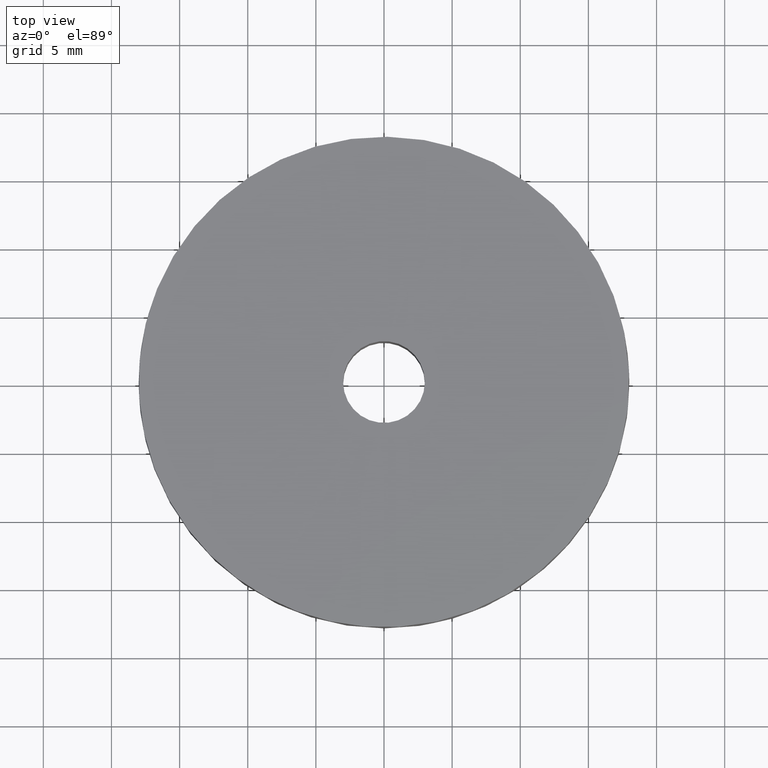
[diagram: clean part render]
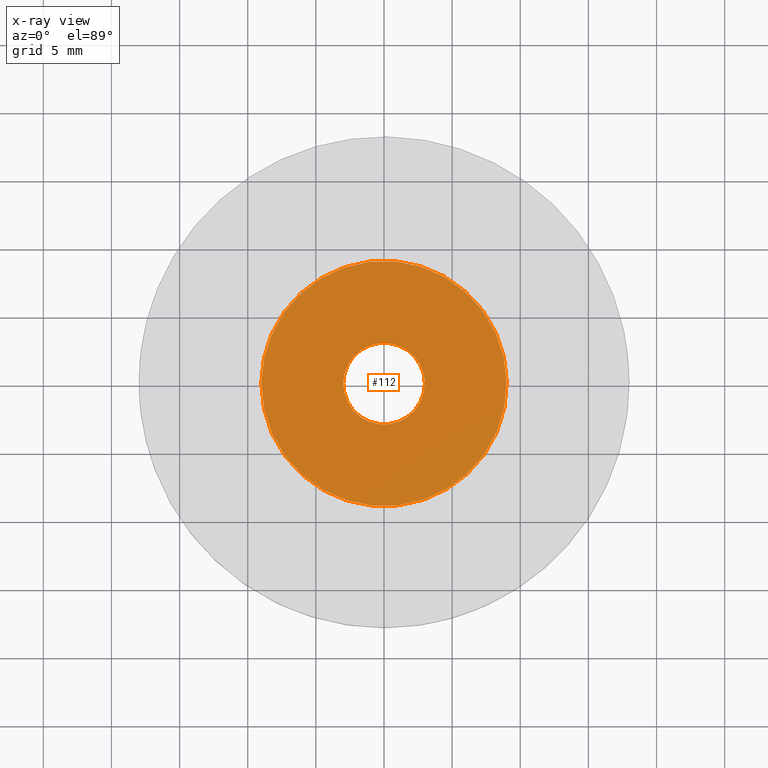
[diagram: x-ray — body ghosted, one internal face saturated and labeled with its STEP entity id]
A machine part, top view, then the same camera in x-ray: the body is ghosted and one INTERNAL B-rep face — a face not visible from any outside direction — is saturated and labeled: STEP entity #112.
In plain terms, the highlighted planar face has unit normal (0, 0, -1).
Its self-contained STEP definition (entity closure, byte-faithful):
#112=ADVANCED_FACE('',(#133,#134),#132,.F.);
#132=PLANE('',#341);
#133=FACE_OUTER_BOUND('',#342,.T.);
#134=FACE_BOUND('',#343,.T.);
#338=CARTESIAN_POINT('',(2.07000000000E+001,-1.87061487217E+001,1.00000000000E+001));
#339=DIRECTION('',(0.00000000000E+000,0.00000000000E+000,-1.00000000000E+000));
#340=DIRECTION('',(-1.00000000000E+000,0.00000000000E+000,0.00000000000E+000));
#341=AXIS2_PLACEMENT_3D('',#338,#339,#340);
#342=EDGE_LOOP('',(#486,#487,#488));
#343=EDGE_LOOP('',(#489,#490,#491));
#486=ORIENTED_EDGE('',*,*,#604,.F.);
#487=ORIENTED_EDGE('',*,*,#605,.F.);
#488=ORIENTED_EDGE('',*,*,#606,.F.);
#489=ORIENTED_EDGE('',*,*,#607,.T.);
#490=ORIENTED_EDGE('',*,*,#608,.T.);
#491=ORIENTED_EDGE('',*,*,#609,.T.);
#604=EDGE_CURVE('',#663,#664,#665,.T.);
#605=EDGE_CURVE('',#671,#663,#672,.T.);
#606=EDGE_CURVE('',#664,#671,#678,.T.);
#607=EDGE_CURVE('',#684,#685,#686,.T.);
#608=EDGE_CURVE('',#685,#692,#693,.T.);
#609=EDGE_CURVE('',#692,#684,#699,.T.);
#663=VERTEX_POINT('',#1062);
#664=VERTEX_POINT('',#1063);
#665=CIRCLE('',#1067,9.00000000000E+000);
#671=VERTEX_POINT('',#1068);
#672=CIRCLE('',#1072,9.00000000000E+000);
#678=CIRCLE('',#1076,9.00000000000E+000);
#684=VERTEX_POINT('',#1077);
#685=VERTEX_POINT('',#1078);
#686=CIRCLE('',#1082,3.00000000003E+000);
#692=VERTEX_POINT('',#1083);
#693=CIRCLE('',#1087,3.00000000003E+000);
#699=CIRCLE('',#1091,3.00000000003E+000);
#1062=CARTESIAN_POINT('',(1.06230810929E+000,-8.93708573758E+000,1.00000000000E+001));
#1063=CARTESIAN_POINT('',(-9.00000000000E+000,-1.77635683940E-015,1.00000000000E+001));
#1064=CARTESIAN_POINT('',(1.15774057008E-012,5.25801624462E-013,1.00000000000E+001));
#1065=DIRECTION('',(8.31528984201E-016,9.88394757351E-017,-1.00000000000E+000));
#1066=DIRECTION('',(-1.00000000000E+000,-5.82450754294E-014,-8.31528984201E-016));
#1067=AXIS2_PLACEMENT_3D('',#1064,#1065,#1066);
#1068=CARTESIAN_POINT('',(-1.06385274010E+000,8.93690199943E+000,1.00000000000E+001));
#1069=CARTESIAN_POINT('',(1.15774057008E-012,5.25801624462E-013,1.00000000000E+001));
#1070=DIRECTION('',(8.31528984201E-016,9.88394757351E-017,-1.00000000000E+000));
#1071=DIRECTION('',(-1.00000000000E+000,-5.82450754294E-014,-8.31528984201E-016));
#1072=AXIS2_PLACEMENT_3D('',#1069,#1070,#1071);
#1073=CARTESIAN_POINT('',(1.15774057008E-012,5.25801624462E-013,1.00000000000E+001));
#1074=DIRECTION('',(8.31528984201E-016,9.88394757351E-017,-1.00000000000E+000));
#1075=DIRECTION('',(-1.00000000000E+000,-5.82450754294E-014,-8.31528984201E-016));
#1076=AXIS2_PLACEMENT_3D('',#1073,#1074,#1075);
#1077=CARTESIAN_POINT('',(-3.00000000006E+000,7.67066460818E-017,1.00000000000E+001));
#1078=CARTESIAN_POINT('',(-3.54617583611E-001,2.97896733278E+000,1.00000000000E+001));
#1079=CARTESIAN_POINT('',(-3.23823190485E-011,3.04625213943E-011,1.00000000000E+001));
#1080=DIRECTION('',(5.92118946458E-016,-2.09345661158E-016,-1.00000000000E+000));
#1081=DIRECTION('',(-1.00000000000E+000,-1.01540257685E-011,-5.92118946456E-016));
#1082=AXIS2_PLACEMENT_3D('',#1079,#1080,#1081);
#1083=CARTESIAN_POINT('',(3.54101614557E-001,-2.97902870858E+000,1.00000000000E+001));
#1084=CARTESIAN_POINT('',(-3.23823190485E-011,3.04625213943E-011,1.00000000000E+001));
#1085=DIRECTION('',(5.92118946458E-016,-2.09345661158E-016,-1.00000000000E+000));
#1086=DIRECTION('',(-1.00000000000E+000,-1.01540257685E-011,-5.92118946456E-016));
#1087=AXIS2_PLACEMENT_3D('',#1084,#1085,#1086);
#1088=CARTESIAN_POINT('',(-3.23823190485E-011,3.04625213943E-011,1.00000000000E+001));
#1089=DIRECTION('',(5.92118946458E-016,-2.09345661158E-016,-1.00000000000E+000));
#1090=DIRECTION('',(-1.00000000000E+000,-1.01540257685E-011,-5.92118946456E-016));
#1091=AXIS2_PLACEMENT_3D('',#1088,#1089,#1090);